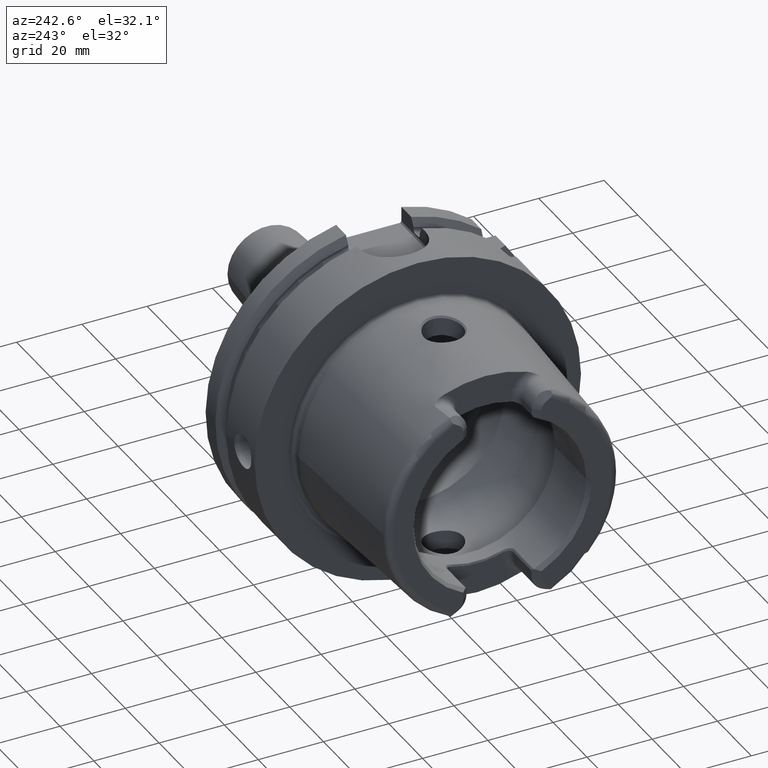
[diagram: clean part render]
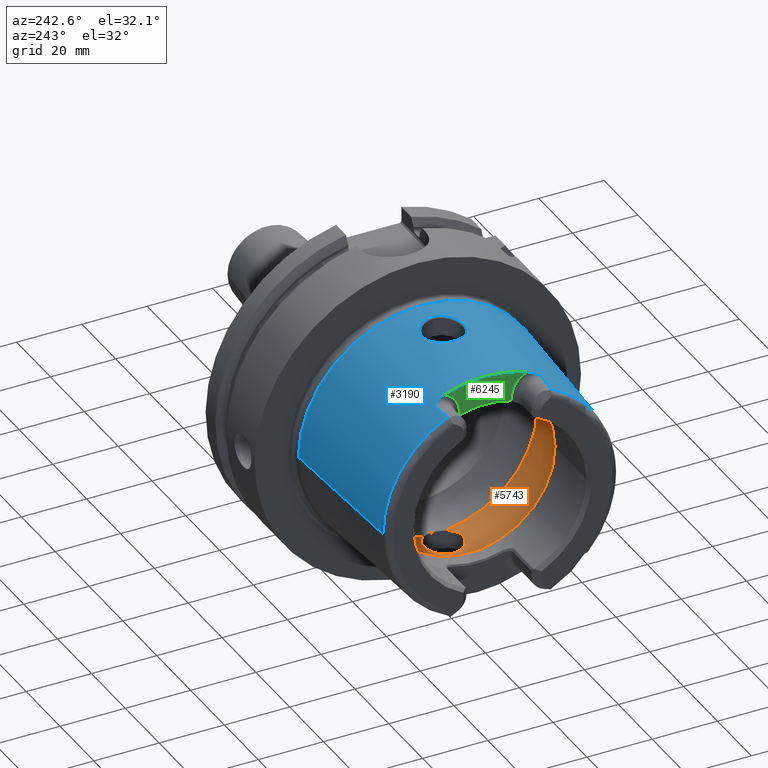
[diagram: same view with three faces highlighted in distinct colors, each labeled with its STEP entity id]
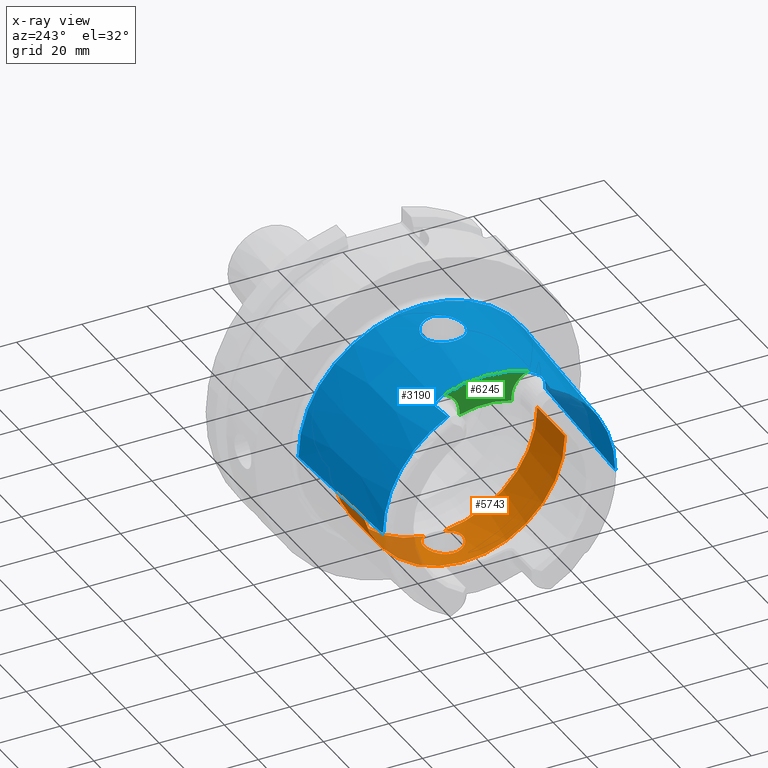
[diagram: x-ray of the same camera — body ghosted, the three highlighted faces saturated]
A machine part, auxiliary view with three faces highlighted in distinct colors.
The next image is the same camera in x-ray (body ghosted, the three faces saturated) — at least one of them is partly hidden behind the body in this view.
Their STEP definitions:

[orange] entity #5743 — the highlighted cylindrical surface (partial cylindrical patch) has radius 31.5 mm, axis along (1, 0, 0).
#2143=CARTESIAN_POINT('',(-2.1E1,0.E0,-3.15E1));
#2144=CARTESIAN_POINT('',(-2.1E1,2.600323061180E-1,-3.15E1));
#2145=CARTESIAN_POINT('',(-2.096661770669E1,7.780092125203E-1,
-3.149361511448E1));
#2146=CARTESIAN_POINT('',(-2.081253217207E1,1.557831356964E0,
-3.146462024253E1));
#2147=CARTESIAN_POINT('',(-2.055574570683E1,2.311276553665E0,
-3.141793916189E1));
#2148=CARTESIAN_POINT('',(-2.020626936033E1,3.016750289566E0,
-3.135769789056E1));
#2149=CARTESIAN_POINT('',(-1.976601122444E1,3.673722414515E0,
-3.128719166027E1));
#2150=CARTESIAN_POINT('',(-1.923610094251E1,4.274362244914E0,
-3.121038529168E1));
#2151=CARTESIAN_POINT('',(-1.863192887465E1,4.797669158712E0,
-3.113374177159E1));
#2152=CARTESIAN_POINT('',(-1.797705422937E1,5.228767812436E0,
-3.106381618043E1));
#2153=CARTESIAN_POINT('',(-1.727328312497E1,5.571149218893E0,
-3.100390713215E1));
#2154=CARTESIAN_POINT('',(-1.652528168161E1,5.820750549838E0,
-3.095774716752E1));
#2155=CARTESIAN_POINT('',(-1.575298047354E1,5.969558117876E0,
-3.092922682144E1));
#2156=CARTESIAN_POINT('',(-1.497973962537E1,6.016520952670E0,
-3.092007277754E1));
#2157=CARTESIAN_POINT('',(-1.420754911889E1,5.964156360884E0,
-3.093027435868E1));
#2158=CARTESIAN_POINT('',(-1.345027932885E1,5.813467932253E0,
-3.095911415652E1));
#2159=CARTESIAN_POINT('',(-1.271967870279E1,5.567549612701E0,
-3.100453585674E1));
#2160=CARTESIAN_POINT('',(-1.202654252881E1,5.230424035329E0,
-3.106352122481E1));
#2161=CARTESIAN_POINT('',(-1.137895123984E1,4.805016643732E0,
-3.113255162345E1));
#2162=CARTESIAN_POINT('',(-1.079033967049E1,4.298901630879E0,
-3.120689445852E1));
#2163=CARTESIAN_POINT('',(-1.027063116687E1,3.719239024479E0,
-3.128166258912E1));
#2164=CARTESIAN_POINT('',(-9.979348326781E0,3.295456177510E0,
-3.132794036358E1));
#2165=CARTESIAN_POINT('',(-9.846794344809E0,3.073185883624E0,
-3.134972932139E1));
#2167=CARTESIAN_POINT('',(-9.846794344809E0,-3.073185883624E0,
-3.134972932139E1));
#2168=CARTESIAN_POINT('',(-9.980267592034E0,-3.296997627679E0,
-3.132778925661E1));
#2169=CARTESIAN_POINT('',(-1.027428374945E1,-3.724632451493E0,
-3.128107498049E1));
#2170=CARTESIAN_POINT('',(-1.080444609373E1,-4.313598102782E0,
-3.120491822807E1));
#2171=CARTESIAN_POINT('',(-1.140518288188E1,-4.825083200941E0,
-3.112945268139E1));
#2172=CARTESIAN_POINT('',(-1.205830347901E1,-5.248491279341E0,
-3.106046243563E1));
#2173=CARTESIAN_POINT('',(-1.275973274351E1,-5.584361629649E0,
-3.100151169777E1));
#2174=CARTESIAN_POINT('',(-1.350804961755E1,-5.829351893619E0,
-3.095611954416E1));
#2175=CARTESIAN_POINT('',(-1.428046132242E1,-5.973692441151E0,
-3.092842373405E1));
#2176=CARTESIAN_POINT('',(-1.505471261768E1,-6.016295068305E0,
-3.092011685270E1));
#2177=CARTESIAN_POINT('',(-1.582807827324E1,-5.959638584634E0,
-3.093115085218E1));
#2178=CARTESIAN_POINT('',(-1.659844154856E1,-5.801063635706E0,
-3.096146461693E1));
#2179=CARTESIAN_POINT('',(-1.734174730538E1,-5.542557460315E0,
-3.100905659353E1));
#2180=CARTESIAN_POINT('',(-1.803699861300E1,-5.193928840565E0,
-3.106968398001E1));
#2181=CARTESIAN_POINT('',(-1.868261407792E1,-4.758494760219E0,
-3.113976584786E1));
#2182=CARTESIAN_POINT('',(-1.927492183405E1,-4.234938547310E0,
-3.121575046881E1));
#2183=CARTESIAN_POINT('',(-1.979338991235E1,-3.637181048324E0,
-3.129142862807E1));
#2184=CARTESIAN_POINT('',(-2.022350943177E1,-2.985970626913E0,
-3.136060026546E1));
#2185=CARTESIAN_POINT('',(-2.056558062715E1,-2.286490117879E0,
-3.141969944443E1));
#2186=CARTESIAN_POINT('',(-2.081663060842E1,-1.540888222611E0,
-3.146538707330E1));
#2187=CARTESIAN_POINT('',(-2.096737197130E1,-7.693136660163E-1,
-3.149375977797E1));
#2188=CARTESIAN_POINT('',(-2.1E1,-2.570924323293E-1,-3.15E1));
#2189=CARTESIAN_POINT('',(-2.1E1,0.E0,-3.15E1));
#2191=CARTESIAN_POINT('',(-9.846794344809E0,0.E0,0.E0));
#2192=DIRECTION('',(-1.E0,0.E0,0.E0));
#2193=DIRECTION('',(0.E0,-9.756145662299E-2,-9.952295022665E-1));
#2194=AXIS2_PLACEMENT_3D('',#2191,#2192,#2193);
#2196=DIRECTION('',(-1.E0,0.E0,0.E0));
#2197=VECTOR('',#2196,1.640380457843E1);
#2198=CARTESIAN_POINT('',(-9.846794344809E0,-3.15E1,0.E0));
#2199=LINE('',#2198,#2197);
#2200=DIRECTION('',(-1.E0,0.E0,0.E0));
#2201=VECTOR('',#2200,1.640380457843E1);
#2202=CARTESIAN_POINT('',(-9.846794344809E0,3.15E1,0.E0));
#2203=LINE('',#2202,#2201);
#2204=CARTESIAN_POINT('',(-9.846794344809E0,0.E0,0.E0));
#2205=DIRECTION('',(-1.E0,0.E0,0.E0));
#2206=DIRECTION('',(0.E0,1.E0,0.E0));
#2207=AXIS2_PLACEMENT_3D('',#2204,#2205,#2206);
#2209=CARTESIAN_POINT('',(-9.846794344809E0,3.073185883624E0,
-3.134972932139E1));
#2240=CARTESIAN_POINT('',(-9.846794344809E0,-3.073185883624E0,
-3.134972932139E1));
#2443=CARTESIAN_POINT('',(-2.625059892324E1,0.E0,0.E0));
#2444=DIRECTION('',(-1.E0,0.E0,0.E0));
#2445=DIRECTION('',(0.E0,1.E0,0.E0));
#2446=AXIS2_PLACEMENT_3D('',#2443,#2444,#2445);
#2735=CARTESIAN_POINT('',(-9.846794344809E0,3.15E1,0.E0));
#2736=VERTEX_POINT('',#2735);
#2737=CARTESIAN_POINT('',(-2.625059892324E1,3.15E1,0.E0));
#2738=VERTEX_POINT('',#2737);
#2747=CARTESIAN_POINT('',(-9.846794344809E0,-3.15E1,0.E0));
#2748=VERTEX_POINT('',#2747);
#2749=CARTESIAN_POINT('',(-2.625059892324E1,-3.15E1,0.E0));
#2750=VERTEX_POINT('',#2749);
#2918=VERTEX_POINT('',#2209);
#2920=VERTEX_POINT('',#2240);
#2921=VERTEX_POINT('',#2143);
#5726=CARTESIAN_POINT('',(-5.3125E1,0.E0,0.E0));
#5727=DIRECTION('',(1.E0,0.E0,0.E0));
#5728=DIRECTION('',(0.E0,-1.E0,0.E0));
#5729=AXIS2_PLACEMENT_3D('',#5726,#5727,#5728);
#5730=CYLINDRICAL_SURFACE('',#5729,3.15E1);
#5731=ORIENTED_EDGE('',*,*,#5680,.F.);
#5732=ORIENTED_EDGE('',*,*,#5408,.F.);
#5734=ORIENTED_EDGE('',*,*,#5733,.T.);
#5735=ORIENTED_EDGE('',*,*,#5719,.T.);
#5737=ORIENTED_EDGE('',*,*,#5736,.F.);
#5738=ORIENTED_EDGE('',*,*,#5715,.F.);
#5740=ORIENTED_EDGE('',*,*,#5739,.T.);
#5741=EDGE_LOOP('',(#5731,#5732,#5734,#5735,#5737,#5738,#5740));
#5742=FACE_OUTER_BOUND('',#5741,.F.);
#5743=ADVANCED_FACE('',(#5742),#5730,.F.);
#2166=B_SPLINE_CURVE_WITH_KNOTS('',3,(#2143,#2144,#2145,#2146,#2147,#2148,#2149,
#2150,#2151,#2152,#2153,#2154,#2155,#2156,#2157,#2158,#2159,#2160,#2161,#2162,
#2163,#2164,#2165),.UNSPECIFIED.,.F.,.F.,(4,1,1,1,1,1,1,1,1,1,1,1,1,1,1,1,1,1,1,
1,4),(0.E0,5.E-2,1.E-1,1.5E-1,2.E-1,2.5E-1,3.E-1,3.5E-1,4.E-1,4.5E-1,5.E-1,
5.5E-1,6.E-1,6.5E-1,7.E-1,7.5E-1,8.E-1,8.5E-1,9.E-1,9.5E-1,1.E0),.UNSPECIFIED.);
#2190=B_SPLINE_CURVE_WITH_KNOTS('',3,(#2167,#2168,#2169,#2170,#2171,#2172,#2173,
#2174,#2175,#2176,#2177,#2178,#2179,#2180,#2181,#2182,#2183,#2184,#2185,#2186,
#2187,#2188,#2189),.UNSPECIFIED.,.F.,.F.,(4,1,1,1,1,1,1,1,1,1,1,1,1,1,1,1,1,1,1,
1,4),(0.E0,5.E-2,1.E-1,1.5E-1,2.E-1,2.5E-1,3.E-1,3.5E-1,4.E-1,4.5E-1,5.E-1,
5.5E-1,6.E-1,6.5E-1,7.E-1,7.5E-1,8.E-1,8.5E-1,9.E-1,9.5E-1,1.E0),.UNSPECIFIED.);
#2195=CIRCLE('',#2194,3.15E1);
#2208=CIRCLE('',#2207,3.15E1);
#2447=CIRCLE('',#2446,3.15E1);
#5408=EDGE_CURVE('',#2920,#2921,#2190,.T.);
#5680=EDGE_CURVE('',#2921,#2918,#2166,.T.);
#5715=EDGE_CURVE('',#2736,#2738,#2203,.T.);
#5719=EDGE_CURVE('',#2748,#2750,#2199,.T.);
#5733=EDGE_CURVE('',#2920,#2748,#2195,.T.);
#5736=EDGE_CURVE('',#2738,#2750,#2447,.T.);
#5739=EDGE_CURVE('',#2736,#2918,#2208,.T.);

[blue] entity #3190 — the highlighted conical surface has half-angle 2.868 deg.
#2=CARTESIAN_POINT('',(-4.810007448473E1,-1.567653238626E1,3.196E1));
#3=CARTESIAN_POINT('',(-4.743649089753E1,-1.575202511592E1,3.196E1));
#4=CARTESIAN_POINT('',(-4.609985749196E1,-1.590320831227E1,3.196E1));
#5=CARTESIAN_POINT('',(-4.406668280177E1,-1.613055880919E1,3.196E1));
#6=CARTESIAN_POINT('',(-4.269206894520E1,-1.628254944441E1,3.196E1));
#7=CARTESIAN_POINT('',(-4.2E1,-1.635864758744E1,3.196E1));
#9=CARTESIAN_POINT('',(-4.E1,0.E0,0.E0));
#10=DIRECTION('',(1.E0,0.E0,0.E0));
#11=DIRECTION('',(0.E0,3.574556786365E-1,9.339301032789E-1));
#12=AXIS2_PLACEMENT_3D('',#9,#10,#11);
#14=CARTESIAN_POINT('',(-4.2E1,1.635864758744E1,3.196E1));
#15=CARTESIAN_POINT('',(-4.269204070145E1,1.628255255002E1,3.196E1));
#16=CARTESIAN_POINT('',(-4.406661691692E1,1.613056612298E1,3.196E1));
#17=CARTESIAN_POINT('',(-4.609979244919E1,1.590321563865E1,3.196E1));
#18=CARTESIAN_POINT('',(-4.743646302974E1,1.575202828631E1,3.196E1));
#19=CARTESIAN_POINT('',(-4.810007448473E1,1.567653238626E1,3.196E1));
#21=CARTESIAN_POINT('',(-2.5E0,0.E0,0.E0));
#22=DIRECTION('',(1.E0,0.E0,0.E0));
#23=DIRECTION('',(0.E0,1.E0,0.E0));
#24=AXIS2_PLACEMENT_3D('',#21,#22,#23);
#26=CARTESIAN_POINT('',(-2.149938207697E1,5.552926221647E-11,3.693037254664E1));
#27=CARTESIAN_POINT('',(-2.149947810722E1,2.456946967410E-1,3.693041400584E1));
#28=CARTESIAN_POINT('',(-2.146978943123E1,7.663421073483E-1,3.692663668754E1));
#29=CARTESIAN_POINT('',(-2.132902699242E1,1.552723327933E0,3.690919478302E1));
#30=CARTESIAN_POINT('',(-2.108091480959E1,2.342139536845E0,3.687974365394E1));
#31=CARTESIAN_POINT('',(-2.073440330363E1,3.094103832942E0,3.684140909161E1));
#32=CARTESIAN_POINT('',(-2.029456045373E1,3.796705318232E0,3.679744070735E1));
#33=CARTESIAN_POINT('',(-1.976895967621E1,4.437440706102E0,3.675180792921E1));
#34=CARTESIAN_POINT('',(-1.916766491360E1,5.004833501251E0,3.670884542936E1));
#35=CARTESIAN_POINT('',(-1.850089510031E1,5.490460623479E0,3.667275311991E1));
#36=CARTESIAN_POINT('',(-1.777939225152E1,5.887431777884E0,3.664739565010E1));
#37=CARTESIAN_POINT('',(-1.701424609593E1,6.190220322635E0,3.663607600264E1));
#38=CARTESIAN_POINT('',(-1.621758055837E1,6.394419176819E0,3.664131821143E1));
#39=CARTESIAN_POINT('',(-1.539955429301E1,6.497326105441E0,3.666474029556E1));
#40=CARTESIAN_POINT('',(-1.457114975166E1,6.496134002949E0,3.670710840669E1));
#41=CARTESIAN_POINT('',(-1.375127425398E1,6.390454994673E0,3.676745544266E1));
#42=CARTESIAN_POINT('',(-1.294983719070E1,6.181706493026E0,3.684404556607E1));
#43=CARTESIAN_POINT('',(-1.217938970715E1,5.872066509057E0,3.693403258601E1));
#44=CARTESIAN_POINT('',(-1.145343003562E1,5.466036101540E0,3.703341626103E1));
#45=CARTESIAN_POINT('',(-1.078465658031E1,4.970022940288E0,3.713742863004E1));
#46=CARTESIAN_POINT('',(-1.018517891880E1,4.392789013038E0,3.724075525816E1));
#47=CARTESIAN_POINT('',(-9.665388344352E0,3.744837411386E0,3.733802077293E1));
#48=CARTESIAN_POINT('',(-9.234092519568E0,3.038687491876E0,3.742410507514E1));
#49=CARTESIAN_POINT('',(-8.897351452215E0,2.287331206380E0,3.749468513875E1));
#50=CARTESIAN_POINT('',(-8.658527750933E0,1.501792221622E0,3.754652778726E1));
#51=CARTESIAN_POINT('',(-8.527369438248E0,7.337668322055E-1,3.757562813366E1));
#52=CARTESIAN_POINT('',(-8.500550849541E0,2.307484502453E-1,3.758164606668E1));
#53=CARTESIAN_POINT('',(-8.500618238409E0,-3.201212427053E-11,
3.758161093072E1));
#55=CARTESIAN_POINT('',(-8.500618238409E0,-3.201212427053E-11,
3.758161093072E1));
#56=CARTESIAN_POINT('',(-8.500529243712E0,-2.424312186462E-1,3.758165761842E1));
#57=CARTESIAN_POINT('',(-8.529377584627E0,-7.570713761110E-1,3.757517365272E1));
#58=CARTESIAN_POINT('',(-8.666699960505E0,-1.535920192154E0,3.754473037167E1));
#59=CARTESIAN_POINT('',(-8.909712492800E0,-2.320075305293E0,3.749204213674E1));
#60=CARTESIAN_POINT('',(-9.250504215006E0,-3.069650750447E0,3.742074072411E1));
#61=CARTESIAN_POINT('',(-9.685687617568E0,-3.773592271729E0,3.733408895737E1));
#62=CARTESIAN_POINT('',(-1.020908185061E1,-4.418816591912E0,3.723645352953E1));
#63=CARTESIAN_POINT('',(-1.081164311031E1,-4.992724782849E0,3.713300191729E1));
#64=CARTESIAN_POINT('',(-1.148289197008E1,-5.484961003997E0,3.702910971345E1));
#65=CARTESIAN_POINT('',(-1.221077052890E1,-5.886958600290E0,3.693005620282E1));
#66=CARTESIAN_POINT('',(-1.298272715167E1,-6.192450910075E0,3.684056019680E1));
#67=CARTESIAN_POINT('',(-1.378543745730E1,-6.397007236175E0,3.676457229973E1));
#68=CARTESIAN_POINT('',(-1.460657276070E1,-6.498354658048E0,3.670491060908E1));
#69=CARTESIAN_POINT('',(-1.543495839616E1,-6.495033034286E0,3.666334714016E1));
#70=CARTESIAN_POINT('',(-1.625254215847E1,-6.387680563827E0,3.664072182306E1));
#71=CARTESIAN_POINT('',(-1.704827269515E1,-6.179075952149E0,3.663623858926E1));
#72=CARTESIAN_POINT('',(-1.781166108930E1,-5.872129661425E0,3.664822647582E1));
#73=CARTESIAN_POINT('',(-1.853088883617E1,-5.471276112331E0,3.667411627299E1));
#74=CARTESIAN_POINT('',(-1.919496044775E1,-4.982042332370E0,3.671058230959E1));
#75=CARTESIAN_POINT('',(-1.979312959260E1,-4.411388967116E0,3.675374151488E1));
#76=CARTESIAN_POINT('',(-2.031520136204E1,-3.767815751250E0,3.679938652908E1));
#77=CARTESIAN_POINT('',(-2.075116173440E1,-3.062888856216E0,3.684318827995E1));
#78=CARTESIAN_POINT('',(-2.109352623852E1,-2.309166702590E0,3.688120055672E1));
#79=CARTESIAN_POINT('',(-2.133733752753E1,-1.518482485311E0,3.691020909579E1));
#80=CARTESIAN_POINT('',(-2.147183542910E1,-7.429704319279E-1,3.692690027450E1));
#81=CARTESIAN_POINT('',(-2.149945558988E1,-2.340112752743E-1,3.693040395664E1));
#82=CARTESIAN_POINT('',(-2.149938207697E1,5.552926221647E-11,3.693037254664E1));
#248=CARTESIAN_POINT('',(-4.044615405310E1,1.501E1,3.270080868281E1));
#249=CARTESIAN_POINT('',(-4.036716971646E1,1.480714421409E1,3.279827559643E1));
#250=CARTESIAN_POINT('',(-4.023151678165E1,1.441318283024E1,3.298193753654E1));
#251=CARTESIAN_POINT('',(-4.009402199227E1,1.386111148947E1,3.322490472400E1));
#252=CARTESIAN_POINT('',(-4.001617021866E1,1.334582492697E1,3.343918234932E1));
#253=CARTESIAN_POINT('',(-4.E1,1.302441475567E1,3.356551938374E1));
#254=CARTESIAN_POINT('',(-4.E1,1.286965552579E1,3.362475247340E1));
#312=CARTESIAN_POINT('',(-4.810007448473E1,0.E0,0.E0));
#313=DIRECTION('',(1.E0,0.E0,0.E0));
#314=DIRECTION('',(0.E0,1.E0,0.E0));
#315=AXIS2_PLACEMENT_3D('',#312,#313,#314);
#387=CARTESIAN_POINT('',(-4.810007448473E1,0.E0,0.E0));
#388=DIRECTION('',(1.E0,0.E0,0.E0));
#389=DIRECTION('',(0.E0,-4.403806547453E-1,8.978111599474E-1));
#390=AXIS2_PLACEMENT_3D('',#387,#388,#389);
#561=DIRECTION('',(-9.987473526255E-1,5.003724236654E-2,0.E0));
#562=VECTOR('',#561,4.565726694029E1);
#563=CARTESIAN_POINT('',(-2.5E0,-3.788225E1,0.E0));
#564=LINE('',#563,#562);
#570=DIRECTION('',(-9.987473526255E-1,-5.003724236654E-2,0.E0));
#571=VECTOR('',#570,4.565726694029E1);
#572=CARTESIAN_POINT('',(-2.5E0,3.788225E1,0.E0));
#573=LINE('',#572,#571);
#2577=CARTESIAN_POINT('',(-4.E1,-1.286965552579E1,3.362475247340E1));
#2578=CARTESIAN_POINT('',(-4.E1,-1.302441541648E1,3.356551913082E1));
#2579=CARTESIAN_POINT('',(-4.001617018251E1,-1.334582535629E1,
3.343918219674E1));
#2580=CARTESIAN_POINT('',(-4.009402242674E1,-1.386111200207E1,
3.322490442026E1));
#2581=CARTESIAN_POINT('',(-4.023151276023E1,-1.441316885171E1,
3.298194383001E1));
#2582=CARTESIAN_POINT('',(-4.036716744567E1,-1.480713838201E1,
3.279827839859E1));
#2583=CARTESIAN_POINT('',(-4.044615405310E1,-1.501E1,3.270080868281E1));
#2659=CARTESIAN_POINT('',(-4.044615405310E1,-1.501E1,3.270080868281E1));
#2660=CARTESIAN_POINT('',(-4.048970886745E1,-1.512186200292E1,
3.264706190833E1));
#2661=CARTESIAN_POINT('',(-4.058203784729E1,-1.533106618308E1,
3.254453864538E1));
#2662=CARTESIAN_POINT('',(-4.073432021554E1,-1.560191666355E1,
3.240695208273E1));
#2663=CARTESIAN_POINT('',(-4.089735125525E1,-1.582886077686E1,
3.228748605874E1));
#2664=CARTESIAN_POINT('',(-4.106769081077E1,-1.601331012900E1,
3.218678608847E1));
#2665=CARTESIAN_POINT('',(-4.125393253486E1,-1.616457753287E1,
3.210056649743E1));
#2666=CARTESIAN_POINT('',(-4.144626840802E1,-1.627335249792E1,
3.203468630644E1));
#2667=CARTESIAN_POINT('',(-4.163743535609E1,-1.633966611997E1,
3.199012198327E1));
#2668=CARTESIAN_POINT('',(-4.181861360320E1,-1.636784997544E1,
3.196549826812E1));
#2669=CARTESIAN_POINT('',(-4.194004005827E1,-1.636524063030E1,3.196E1));
#2670=CARTESIAN_POINT('',(-4.2E1,-1.635864758744E1,3.196E1));
#2680=CARTESIAN_POINT('',(-4.2E1,1.635864758744E1,3.196E1));
#2681=CARTESIAN_POINT('',(-4.193871342572E1,1.636538650345E1,3.196E1));
#2682=CARTESIAN_POINT('',(-4.181450390691E1,1.636814761969E1,3.196557762379E1));
#2683=CARTESIAN_POINT('',(-4.162243507007E1,1.633619695788E1,3.199274042675E1));
#2684=CARTESIAN_POINT('',(-4.143278453244E1,1.626680995517E1,3.203876886227E1));
#2685=CARTESIAN_POINT('',(-4.124494122381E1,1.615802805146E1,3.210436522250E1));
#2686=CARTESIAN_POINT('',(-4.106242535143E1,1.600818739776E1,3.218962850171E1));
#2687=CARTESIAN_POINT('',(-4.089248890939E1,1.582281513116E1,3.229072139863E1));
#2688=CARTESIAN_POINT('',(-4.073124146543E1,1.559684012110E1,3.240956146553E1));
#2689=CARTESIAN_POINT('',(-4.058058611384E1,1.532793070389E1,3.254608698749E1));
#2690=CARTESIAN_POINT('',(-4.048925691866E1,1.512070126105E1,3.264761961452E1));
#2691=CARTESIAN_POINT('',(-4.044615405310E1,1.501E1,3.270080868281E1));
#2713=CARTESIAN_POINT('',(-2.5E0,3.788225E1,0.E0));
#2714=CARTESIAN_POINT('',(-2.5E0,-3.788225E1,0.E0));
#2715=VERTEX_POINT('',#2713);
#2716=VERTEX_POINT('',#2714);
#2717=CARTESIAN_POINT('',(-4.810007448473E1,3.559768626831E1,0.E0));
#2718=VERTEX_POINT('',#2717);
#2719=CARTESIAN_POINT('',(-4.810007448473E1,-3.559768626831E1,0.E0));
#2720=VERTEX_POINT('',#2719);
#2757=CARTESIAN_POINT('',(-4.810007448473E1,1.567653238626E1,3.196E1));
#2758=VERTEX_POINT('',#2757);
#2759=CARTESIAN_POINT('',(-4.810007448473E1,-1.567653238626E1,3.196E1));
#2760=VERTEX_POINT('',#2759);
#2769=CARTESIAN_POINT('',(-4.E1,1.286965552579E1,3.362475247340E1));
#2770=VERTEX_POINT('',#2769);
#2773=CARTESIAN_POINT('',(-4.2E1,1.635864758744E1,3.196E1));
#2774=VERTEX_POINT('',#2773);
#2775=CARTESIAN_POINT('',(-4.E1,-1.286965552579E1,3.362475247340E1));
#2776=VERTEX_POINT('',#2775);
#2779=CARTESIAN_POINT('',(-4.2E1,-1.635864758744E1,3.196E1));
#2780=VERTEX_POINT('',#2779);
#2781=VERTEX_POINT('',#2691);
#2782=VERTEX_POINT('',#2659);
#2922=VERTEX_POINT('',#26);
#2923=VERTEX_POINT('',#53);
#3153=CARTESIAN_POINT('',(-2.530003724237E1,0.E0,0.E0));
#3154=DIRECTION('',(1.E0,0.E0,0.E0));
#3155=DIRECTION('',(0.E0,-1.E0,0.E0));
#3156=AXIS2_PLACEMENT_3D('',#3153,#3154,#3155);
#3157=CONICAL_SURFACE('',#3156,3.673996813416E1,2.868120487315E0);
#3159=ORIENTED_EDGE('',*,*,#3158,.T.);
#3161=ORIENTED_EDGE('',*,*,#3160,.F.);
#3163=ORIENTED_EDGE('',*,*,#3162,.F.);
#3165=ORIENTED_EDGE('',*,*,#3164,.F.);
#3167=ORIENTED_EDGE('',*,*,#3166,.F.);
#3169=ORIENTED_EDGE('',*,*,#3168,.F.);
#3171=ORIENTED_EDGE('',*,*,#3170,.T.);
#3173=ORIENTED_EDGE('',*,*,#3172,.F.);
#3175=ORIENTED_EDGE('',*,*,#3174,.F.);
#3177=ORIENTED_EDGE('',*,*,#3176,.T.);
#3179=ORIENTED_EDGE('',*,*,#3178,.T.);
#3181=ORIENTED_EDGE('',*,*,#3180,.F.);
#3182=EDGE_LOOP('',(#3159,#3161,#3163,#3165,#3167,#3169,#3171,#3173,#3175,#3177,
#3179,#3181));
#3183=FACE_OUTER_BOUND('',#3182,.F.);
#3185=ORIENTED_EDGE('',*,*,#3184,.F.);
#3187=ORIENTED_EDGE('',*,*,#3186,.F.);
#3188=EDGE_LOOP('',(#3185,#3187));
#3189=FACE_BOUND('',#3188,.F.);
#3190=ADVANCED_FACE('',(#3183,#3189),#3157,.T.);
#8=B_SPLINE_CURVE_WITH_KNOTS('',3,(#2,#3,#4,#5,#6,#7),.UNSPECIFIED.,.F.,.F.,(4,
1,1,4),(0.E0,3.333333333333E-1,6.666666666667E-1,1.E0),.UNSPECIFIED.);
#13=CIRCLE('',#12,3.60035E1);
#20=B_SPLINE_CURVE_WITH_KNOTS('',3,(#14,#15,#16,#17,#18,#19),.UNSPECIFIED.,.F.,
.F.,(4,1,1,4),(0.E0,3.333333333333E-1,6.666666666667E-1,1.E0),.UNSPECIFIED.);
#25=CIRCLE('',#24,3.788225E1);
#54=B_SPLINE_CURVE_WITH_KNOTS('',3,(#26,#27,#28,#29,#30,#31,#32,#33,#34,#35,#36,
#37,#38,#39,#40,#41,#42,#43,#44,#45,#46,#47,#48,#49,#50,#51,#52,#53),
.UNSPECIFIED.,.F.,.F.,(4,1,1,1,1,1,1,1,1,1,1,1,1,1,1,1,1,1,1,1,1,1,1,1,1,4),(
0.E0,3.626792904996E-2,7.667308714875E-2,1.170782452475E-1,1.574834033463E-1,
1.978885614451E-1,2.382937195439E-1,2.786988776427E-1,3.191040357415E-1,
3.595091938403E-1,3.999143519391E-1,4.403195100379E-1,4.807246681367E-1,
5.211298262355E-1,5.615349843343E-1,6.019401424331E-1,6.423453005319E-1,
6.827504586307E-1,7.231556167295E-1,7.635607748283E-1,8.039659329271E-1,
8.443710910259E-1,8.847762491247E-1,9.251814072235E-1,9.655865653223E-1,1.E0),
.UNSPECIFIED.);
#83=B_SPLINE_CURVE_WITH_KNOTS('',3,(#55,#56,#57,#58,#59,#60,#61,#62,#63,#64,#65,
#66,#67,#68,#69,#70,#71,#72,#73,#74,#75,#76,#77,#78,#79,#80,#81,#82),
.UNSPECIFIED.,.F.,.F.,(4,1,1,1,1,1,1,1,1,1,1,1,1,1,1,1,1,1,1,1,1,1,1,1,1,4),(
0.E0,3.618329534544E-2,7.658712835106E-2,1.169909613567E-1,1.573947943623E-1,
1.977986273679E-1,2.382024603735E-1,2.786062933791E-1,3.190101263848E-1,
3.594139593904E-1,3.998177923960E-1,4.402216254016E-1,4.806254584072E-1,
5.210292914128E-1,5.614331244184E-1,6.018369574241E-1,6.422407904297E-1,
6.826446234353E-1,7.230484564409E-1,7.634522894465E-1,8.038561224521E-1,
8.442599554578E-1,8.846637884634E-1,9.250676214690E-1,9.654714544746E-1,1.E0),
.UNSPECIFIED.);
#255=B_SPLINE_CURVE_WITH_KNOTS('',3,(#248,#249,#250,#251,#252,#253,#254),
.UNSPECIFIED.,.F.,.F.,(4,1,1,1,4),(0.E0,2.5E-1,5.E-1,7.5E-1,1.E0),
.UNSPECIFIED.);
#316=CIRCLE('',#315,3.559768626831E1);
#391=CIRCLE('',#390,3.559768626831E1);
#2584=B_SPLINE_CURVE_WITH_KNOTS('',3,(#2577,#2578,#2579,#2580,#2581,#2582,
#2583),.UNSPECIFIED.,.F.,.F.,(4,1,1,1,4),(0.E0,2.5E-1,5.E-1,7.5E-1,1.E0),
.UNSPECIFIED.);
#2671=B_SPLINE_CURVE_WITH_KNOTS('',3,(#2659,#2660,#2661,#2662,#2663,#2664,#2665,
#2666,#2667,#2668,#2669,#2670),.UNSPECIFIED.,.F.,.F.,(4,1,1,1,1,1,1,1,1,4),
(0.E0,1.111111111111E-1,2.222222222222E-1,3.333333333333E-1,4.444444444444E-1,
5.555555555556E-1,6.666666666667E-1,7.777777777778E-1,8.888888888889E-1,1.E0),
.UNSPECIFIED.);
#2692=B_SPLINE_CURVE_WITH_KNOTS('',3,(#2680,#2681,#2682,#2683,#2684,#2685,#2686,
#2687,#2688,#2689,#2690,#2691),.UNSPECIFIED.,.F.,.F.,(4,1,1,1,1,1,1,1,1,4),
(0.E0,1.111111111111E-1,2.222222222222E-1,3.333333333333E-1,4.444444444444E-1,
5.555555555556E-1,6.666666666667E-1,7.777777777778E-1,8.888888888889E-1,1.E0),
.UNSPECIFIED.);
#3158=EDGE_CURVE('',#2760,#2780,#8,.T.);
#3160=EDGE_CURVE('',#2782,#2780,#2671,.T.);
#3162=EDGE_CURVE('',#2776,#2782,#2584,.T.);
#3164=EDGE_CURVE('',#2770,#2776,#13,.T.);
#3166=EDGE_CURVE('',#2781,#2770,#255,.T.);
#3168=EDGE_CURVE('',#2774,#2781,#2692,.T.);
#3170=EDGE_CURVE('',#2774,#2758,#20,.T.);
#3172=EDGE_CURVE('',#2718,#2758,#316,.T.);
#3174=EDGE_CURVE('',#2715,#2718,#573,.T.);
#3176=EDGE_CURVE('',#2715,#2716,#25,.T.);
#3178=EDGE_CURVE('',#2716,#2720,#564,.T.);
#3180=EDGE_CURVE('',#2760,#2720,#391,.T.);
#3184=EDGE_CURVE('',#2922,#2923,#54,.T.);
#3186=EDGE_CURVE('',#2923,#2922,#83,.T.);

[green] entity #6245 — the highlighted planar face has unit normal (-1, 0, 0).
#9=CARTESIAN_POINT('',(-4.E1,0.E0,0.E0));
#10=DIRECTION('',(1.E0,0.E0,0.E0));
#11=DIRECTION('',(0.E0,3.574556786365E-1,9.339301032789E-1));
#12=AXIS2_PLACEMENT_3D('',#9,#10,#11);
#2548=DIRECTION('',(0.E0,5.174062213620E-12,1.E0));
#2549=VECTOR('',#2548,1.199558594508E0);
#2550=CARTESIAN_POINT('',(-4.E1,8.009999999994E0,2.576044140549E1));
#2551=LINE('',#2550,#2549);
#2552=CARTESIAN_POINT('',(-4.E1,1.501E1,2.696E1));
#2553=DIRECTION('',(-1.E0,0.E0,0.E0));
#2554=DIRECTION('',(0.E0,-1.E0,0.E0));
#2555=AXIS2_PLACEMENT_3D('',#2552,#2553,#2554);
#2557=CARTESIAN_POINT('',(-4.E1,-1.501E1,2.696E1));
#2558=DIRECTION('',(-1.E0,0.E0,0.E0));
#2559=DIRECTION('',(0.E0,3.057634963159E-1,9.521074962002E-1));
#2560=AXIS2_PLACEMENT_3D('',#2557,#2558,#2559);
#2562=DIRECTION('',(0.E0,6.866664706538E-12,-1.E0));
#2563=VECTOR('',#2562,1.199558594503E0);
#2564=CARTESIAN_POINT('',(-4.E1,-8.010000000001E0,2.695999999999E1));
#2565=LINE('',#2564,#2563);
#2566=CARTESIAN_POINT('',(-4.E1,8.009999999994E0,2.576044140549E1));
#2567=CARTESIAN_POINT('',(-4.E1,7.269616392493E0,2.599521452766E1));
#2568=CARTESIAN_POINT('',(-4.E1,5.774680607733E0,2.639793295020E1));
#2569=CARTESIAN_POINT('',(-4.E1,3.481759859025E0,2.680464578135E1));
#2570=CARTESIAN_POINT('',(-4.E1,1.163574268407E0,2.700848033442E1));
#2571=CARTESIAN_POINT('',(-4.E1,-1.163574229637E0,2.700848033529E1));
#2572=CARTESIAN_POINT('',(-4.E1,-3.481759771637E0,2.680464579107E1));
#2573=CARTESIAN_POINT('',(-4.E1,-5.774680487919E0,2.639793297771E1));
#2574=CARTESIAN_POINT('',(-4.E1,-7.269616343063E0,2.599521454333E1));
#2575=CARTESIAN_POINT('',(-4.E1,-8.009999999993E0,2.576044140549E1));
#2761=CARTESIAN_POINT('',(-4.E1,8.01E0,2.696E1));
#2763=VERTEX_POINT('',#2761);
#2765=CARTESIAN_POINT('',(-4.E1,-8.01E0,2.696E1));
#2767=VERTEX_POINT('',#2765);
#2769=CARTESIAN_POINT('',(-4.E1,1.286965552579E1,3.362475247340E1));
#2770=VERTEX_POINT('',#2769);
#2775=CARTESIAN_POINT('',(-4.E1,-1.286965552579E1,3.362475247340E1));
#2776=VERTEX_POINT('',#2775);
#2817=CARTESIAN_POINT('',(-4.E1,8.009999999994E0,2.576044140549E1));
#2818=VERTEX_POINT('',#2817);
#2819=CARTESIAN_POINT('',(-4.E1,-8.009999999993E0,2.576044140549E1));
#2820=VERTEX_POINT('',#2819);
#6230=CARTESIAN_POINT('',(-4.E1,0.E0,0.E0));
#6231=DIRECTION('',(-1.E0,0.E0,0.E0));
#6232=DIRECTION('',(0.E0,0.E0,1.E0));
#6233=AXIS2_PLACEMENT_3D('',#6230,#6231,#6232);
#6234=PLANE('',#6233);
#6235=ORIENTED_EDGE('',*,*,#3379,.T.);
#6236=ORIENTED_EDGE('',*,*,#3397,.T.);
#6237=ORIENTED_EDGE('',*,*,#3164,.T.);
#6239=ORIENTED_EDGE('',*,*,#6238,.T.);
#6241=ORIENTED_EDGE('',*,*,#6240,.T.);
#6242=ORIENTED_EDGE('',*,*,#6221,.F.);
#6243=EDGE_LOOP('',(#6235,#6236,#6237,#6239,#6241,#6242));
#6244=FACE_OUTER_BOUND('',#6243,.F.);
#6245=ADVANCED_FACE('',(#6244),#6234,.T.);
#13=CIRCLE('',#12,3.60035E1);
#2556=CIRCLE('',#2555,7.E0);
#2561=CIRCLE('',#2560,7.E0);
#2576=B_SPLINE_CURVE_WITH_KNOTS('',3,(#2566,#2567,#2568,#2569,#2570,#2571,#2572,
#2573,#2574,#2575),.UNSPECIFIED.,.F.,.F.,(4,1,1,1,1,1,1,4),(0.E0,
1.428571428571E-1,2.857142857143E-1,4.285714285714E-1,5.714285714286E-1,
7.142857142857E-1,8.571428571429E-1,1.E0),.UNSPECIFIED.);
#3164=EDGE_CURVE('',#2770,#2776,#13,.T.);
#3379=EDGE_CURVE('',#2818,#2763,#2551,.T.);
#3397=EDGE_CURVE('',#2763,#2770,#2556,.T.);
#6221=EDGE_CURVE('',#2818,#2820,#2576,.T.);
#6238=EDGE_CURVE('',#2776,#2767,#2561,.T.);
#6240=EDGE_CURVE('',#2767,#2820,#2565,.T.);